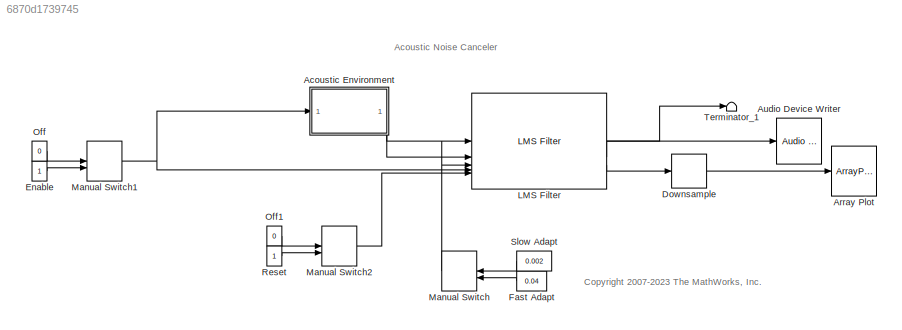
MODEL slx_6870d1739745
KIND model
CONFIG AbsTol = auto
CONFIG EnableMultiTasking = on
CONFIG FixedStep = auto
CONFIG MaxStep = auto
CONFIG MinStep = auto
CONFIG RelTol = 1e-3
CONFIG SampleTimeConstraint = Unconstrained
CONFIG SolverName = FixedStepDiscrete
CONFIG StartTime = 0.0
CONFIG StopTime = inf
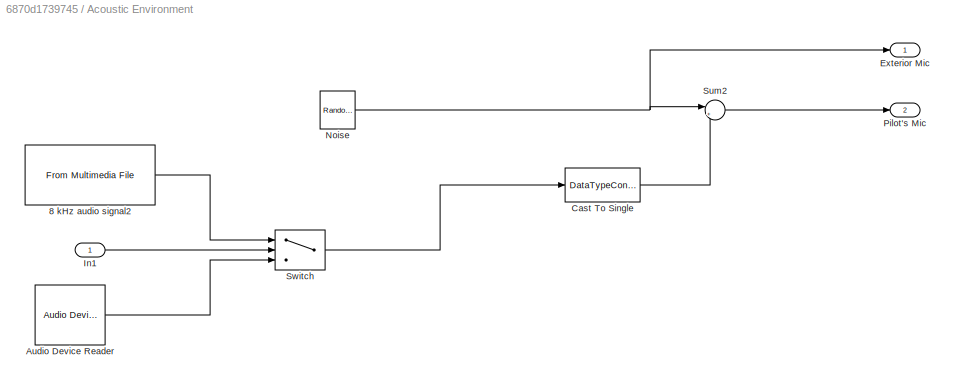
BLOCK [SubSystem] Acoustic Environment
  NameLocation = top
BLOCK [Reference] Acoustic Environment/8 kHz audio signal2  REF=dspvision/From Multimedia File
  SourceBlock = dspvision/From Multimedia File
  SourceType = From Multimedia File
BLOCK [Reference] Acoustic Environment/Audio Device Reader  REF=audiosources/Audio Device
Reader
  SourceBlock = audiosources/Audio Device\nReader
  SourceType = Audio Device Reader
BLOCK [DataTypeConversion] Acoustic Environment/Cast To Single
  OutDataTypeStr = single
  RndMeth = Floor
  SaturateOnIntegerOverflow = off
BLOCK [Outport] Acoustic Environment/Exterior Mic
  NameLocation = top
  VectorParamsAs1DForOutWhenUnconnected = off
BLOCK [Inport] Acoustic Environment/In1
BLOCK [Reference] Acoustic Environment/Noise  REF=dspsrcs4/Random
Source
  NameLocation = top
  SourceBlock = dspsrcs4/Random\nSource
  SourceType = Random Source
BLOCK [Outport] Acoustic Environment/Pilot's Mic
  Port = 2
  VectorParamsAs1DForOutWhenUnconnected = off
BLOCK [Sum] Acoustic Environment/Sum2
  InputSameDT = on
  Inputs = |++
  OutDataTypeStr = Inherit: Same as first input
  SaturateOnIntegerOverflow = on
BLOCK [Switch] Acoustic Environment/Switch
  Criteria = u2 > Threshold
  InputSameDT = off
  SaturateOnIntegerOverflow = off
BLOCK [ArrayPlot] Array Plot
  GraphicalSettings = {"Style":{"BackgroundColor":[0.12941176470588237,0.12941176470588237,0.12941176470588237],"AxesColor":[0.07058823529411765,0.07058823529411765,0.07058823529411765],"LabelsColor":[0.8509803921568627,0.8509803921568627,0.8509803921568627],"PreserveColors":false,"Visible":[true],"LineStyle":["-"],"LineColor":[[1,1,0.06666666666666667]],"LineWidth":[1.5],"Marker":["o"],"FontSize":"small"},"Cursors":{"...<+534ch>
  ScopeFrameLocation = window
  Visible = on
  WasSavedAsWebScope = on
  WindowPosition = [770.000000,50.000000,766.000000,785.000000,]
  XLabel = Samples
  YLimits = [-0.0744 0.2746]
BLOCK [Reference] Audio Device Writer  REF=dspsnks4/Audio Device
Writer
  SourceBlock = dspsnks4/Audio Device\nWriter
  SourceType = Audio Device Writer
BLOCK [DownSample] Downsample
  InputProcessing = Elements as channels (sample based)
  N = 32
  RateOptions = Allow multirate processing
  UserDataPersistent = on
BLOCK [Constant] Enable
  OutDataTypeStr = boolean
BLOCK [Constant] Fast Adapt
  OutDataTypeStr = Inherit: Inherit via back propagation
  Value = 0.04
BLOCK [Reference] LMS Filter  REF=dspadpt3/LMS Filter
  SourceBlock = dspadpt3/LMS Filter
  SourceType = LMS Filter
BLOCK [ManualSwitch] Manual Switch
  NameLocation = top
BLOCK [ManualSwitch] Manual Switch1
  CurrentSetting = 0
  NameLocation = top
BLOCK [ManualSwitch] Manual Switch2
  NameLocation = top
BLOCK [Constant] Off
  NameLocation = top
  OutDataTypeStr = boolean
  Value = 0
BLOCK [Constant] Off1
  NameLocation = top
  OutDataTypeStr = boolean
  Value = 0
BLOCK [Constant] Reset
  OutDataTypeStr = boolean
BLOCK [Constant] Slow Adapt
  NameLocation = top
  OutDataTypeStr = Inherit: Inherit via back propagation
  Value = 0.002
BLOCK [Terminator] Terminator_1
ANNOTATION (root): Acoustic Noise Canceler
ANNOTATION (root): <copyright redacted>
LINE Acoustic Environment/8 kHz audio signal2:1 -> Acoustic Environment/Switch:1
LINE Acoustic Environment/Audio Device Reader:1 -> Acoustic Environment/Switch:3
LINE Acoustic Environment/Cast To Single:1 -> Acoustic Environment/Sum2:2
LINE Acoustic Environment/In1:1 -> Acoustic Environment/Switch:2
NET Acoustic Environment/Noise:1 -> Acoustic Environment/Exterior Mic:1, Acoustic Environment/Sum2:1
LINE Acoustic Environment/Sum2:1 -> Acoustic Environment/Pilot's Mic:1
LINE Acoustic Environment/Switch:1 -> Acoustic Environment/Cast To Single:1
LINE Acoustic Environment:1 -> LMS Filter:1
LINE Acoustic Environment:2 -> LMS Filter:2
LINE Downsample:1 -> Array Plot:1
LINE Enable:1 -> Manual Switch1:2
LINE Fast Adapt:1 -> Manual Switch:2
LINE LMS Filter:1 -> Terminator_1:1
LINE LMS Filter:2 -> Audio Device Writer:1
LINE LMS Filter:3 -> Downsample:1
NET Manual Switch1:1 -> Acoustic Environment:1, LMS Filter:4
LINE Manual Switch2:1 -> LMS Filter:5
LINE Manual Switch:1 -> LMS Filter:3
LINE Off1:1 -> Manual Switch2:1
LINE Off:1 -> Manual Switch1:1
LINE Reset:1 -> Manual Switch2:2
LINE Slow Adapt:1 -> Manual Switch:1
note: NET lines group one-source signal fan-out (src -> all destinations, sorted); 1:1 wires keep LINE
